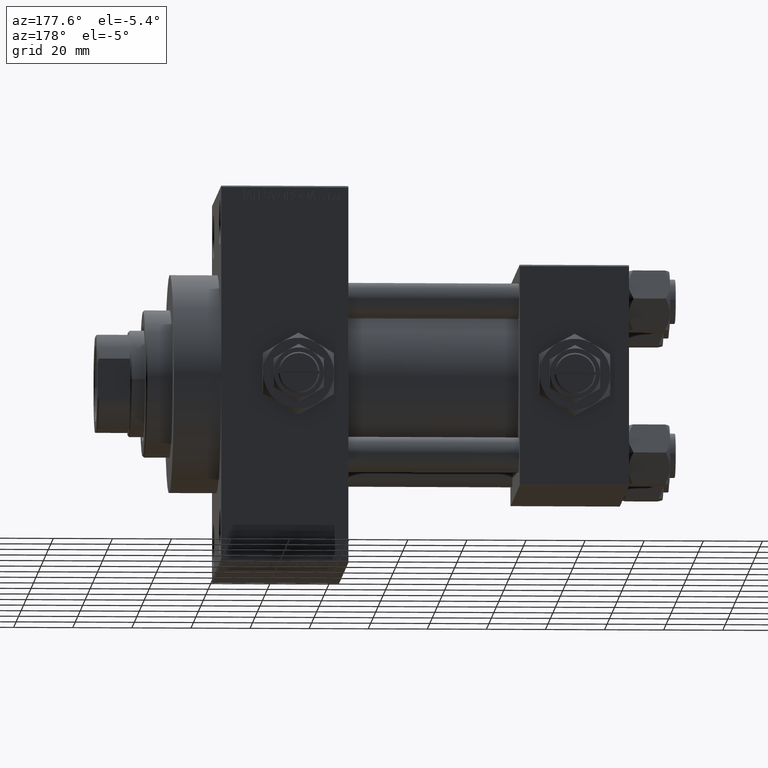
[diagram: clean part render]
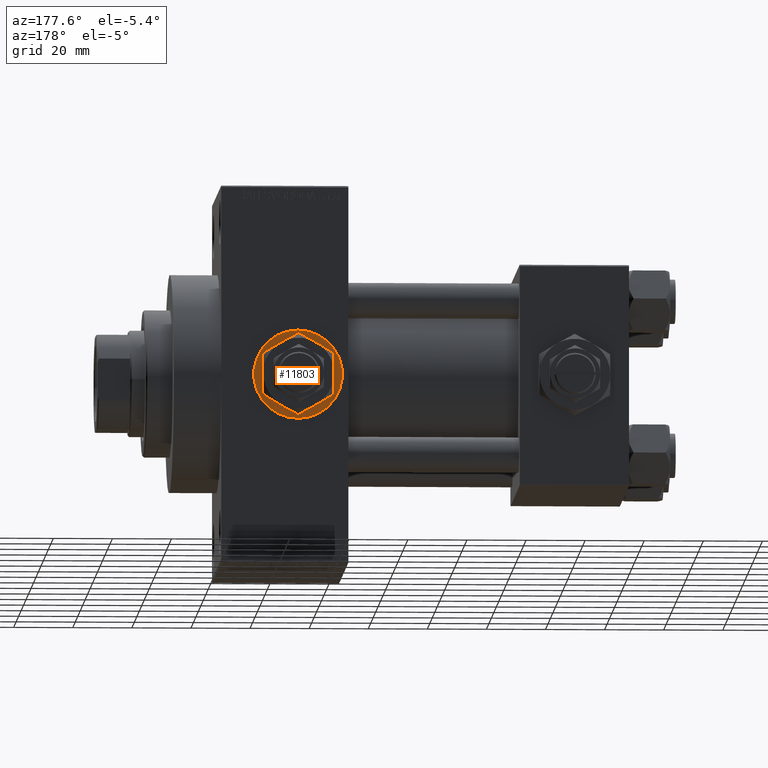
[diagram: same view with one face highlighted and labeled with its STEP entity id]
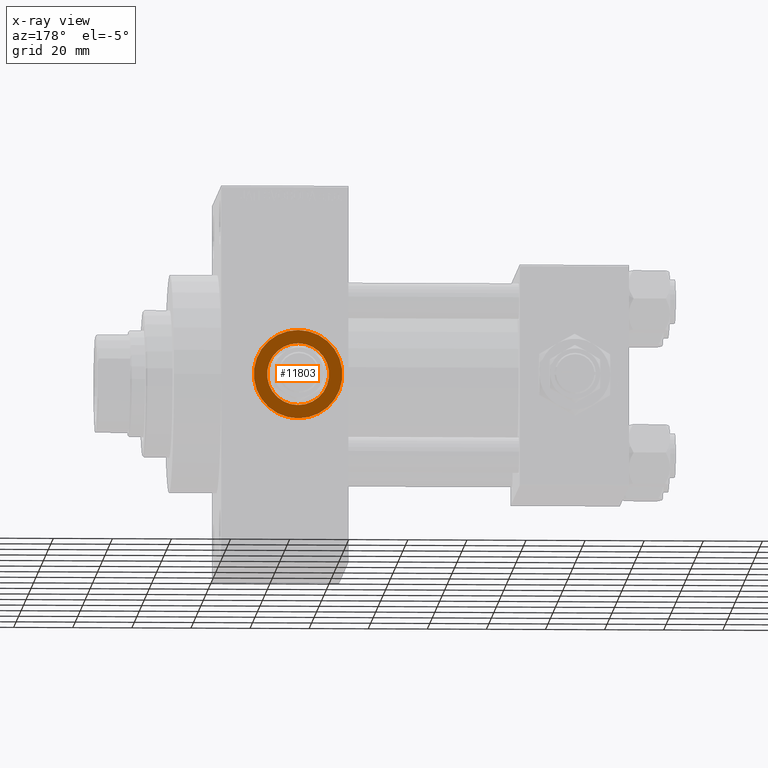
[diagram: x-ray of the same camera — body ghosted, the highlighted face saturated]
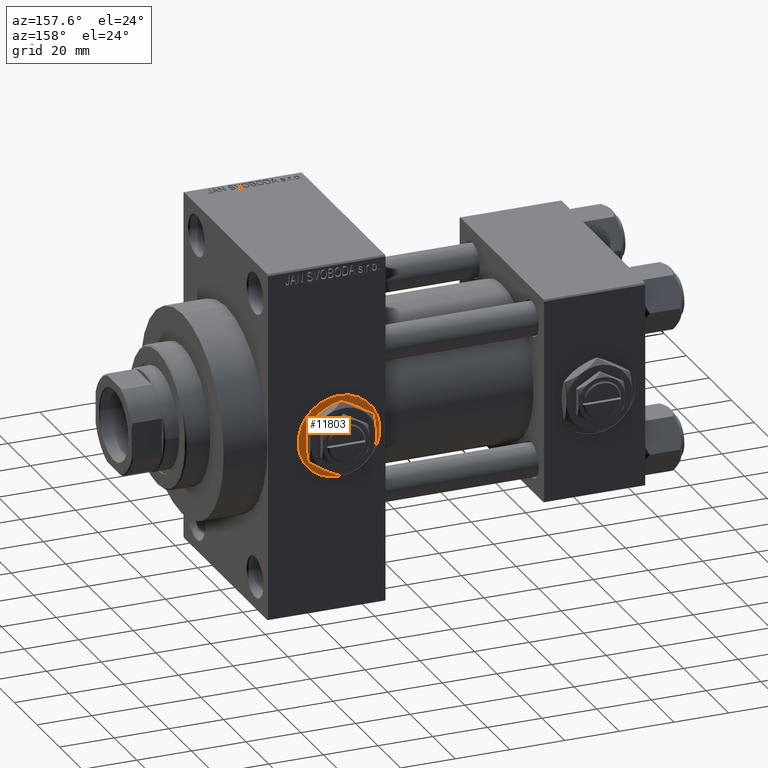
[diagram: same view with one face highlighted and labeled with its STEP entity id]
A machine part, auxiliary view. The second image highlights one B-rep face of the part: STEP entity #11803.
The next image is the same camera in x-ray: the body ghosted, the highlighted face saturated — about 0% of this face is hidden behind the body in this view.
A second angle (auxiliary view) of the same face is appended — the face is thin or edge-on in the first view.
In plain terms, the highlighted planar face has unit normal (0, 1, 0).
Its self-contained STEP definition (entity closure, byte-faithful):
#3241 = DIRECTION ( 'NONE',  ( 0.000000000000000000, 1.000000000000000000, 0.000000000000000000 ) ) ;
#4077 = ORIENTED_EDGE ( 'NONE', *, *, #46195, .F. ) ;
#4567 = CARTESIAN_POINT ( 'NONE',  ( 112.0000000000000000, 37.29999999999999716, -2.032879073410320814E-15 ) ) ;
#5619 = CIRCLE ( 'NONE', #24747, 10.48000000000000043 ) ;
#5658 = FACE_BOUND ( 'NONE', #12929, .T. ) ;
#5989 = VERTEX_POINT ( 'NONE', #38853 ) ;
#10160 = VERTEX_POINT ( 'NONE', #47848 ) ;
#11092 = ORIENTED_EDGE ( 'NONE', *, *, #36602, .F. ) ;
#11803 = ADVANCED_FACE ( 'NONE', ( #5658, #31117 ), #16144, .T. ) ;
#12628 = DIRECTION ( 'NONE',  ( 0.000000000000000000, 1.000000000000000000, 0.000000000000000000 ) ) ;
#12929 = EDGE_LOOP ( 'NONE', ( #4077, #11092 ) ) ;
#16028 = EDGE_CURVE ( 'NONE', #35830, #31231, #48926, .T. ) ;
#16065 = CIRCLE ( 'NONE', #28801, 15.00000000000001243 ) ;
#16144 = PLANE ( 'NONE',  #32035 ) ;
#16162 = CARTESIAN_POINT ( 'NONE',  ( 112.0000000000000000, 37.30000000000000426, -2.032879073410320814E-15 ) ) ;
#20268 = DIRECTION ( 'NONE',  ( 0.000000000000000000, 1.000000000000000000, 0.000000000000000000 ) ) ;
#20384 = CARTESIAN_POINT ( 'NONE',  ( 112.0000000000000000, 37.29999999999999716, -2.032879073410320814E-15 ) ) ;
#22349 = CARTESIAN_POINT ( 'NONE',  ( 112.0000000000000000, 37.29999999999999716, 15.00000000000001066 ) ) ;
#22884 = CARTESIAN_POINT ( 'NONE',  ( 112.0000000000000000, 37.29999999999999716, -15.00000000000001421 ) ) ;
#23273 = DIRECTION ( 'NONE',  ( 0.000000000000000000, 1.000000000000000000, 0.000000000000000000 ) ) ;
#24747 = AXIS2_PLACEMENT_3D ( 'NONE', #16162, #34141, #30654 ) ;
#27644 = EDGE_LOOP ( 'NONE', ( #47191, #43683 ) ) ;
#28801 = AXIS2_PLACEMENT_3D ( 'NONE', #4567, #20268, #42222 ) ;
#29551 = AXIS2_PLACEMENT_3D ( 'NONE', #38141, #3241, #33921 ) ;
#30497 = DIRECTION ( 'NONE',  ( 0.000000000000000000, 0.000000000000000000, 1.000000000000000000 ) ) ;
#30654 = DIRECTION ( 'NONE',  ( 0.000000000000000000, 0.000000000000000000, 1.000000000000000000 ) ) ;
#31117 = FACE_OUTER_BOUND ( 'NONE', #27644, .T. ) ;
#31231 = VERTEX_POINT ( 'NONE', #22349 ) ;
#32035 = AXIS2_PLACEMENT_3D ( 'NONE', #20384, #12628, #36071 ) ;
#33921 = DIRECTION ( 'NONE',  ( 0.000000000000000000, 0.000000000000000000, 1.000000000000000000 ) ) ;
#34141 = DIRECTION ( 'NONE',  ( 0.000000000000000000, 1.000000000000000000, 0.000000000000000000 ) ) ;
#34964 = CARTESIAN_POINT ( 'NONE',  ( 112.0000000000000000, 37.29999999999999716, -2.032879073410320814E-15 ) ) ;
#35830 = VERTEX_POINT ( 'NONE', #22884 ) ;
#36071 = DIRECTION ( 'NONE',  ( 0.000000000000000000, -0.000000000000000000, 1.000000000000000000 ) ) ;
#36602 = EDGE_CURVE ( 'NONE', #10160, #5989, #5619, .T. ) ;
#38141 = CARTESIAN_POINT ( 'NONE',  ( 112.0000000000000000, 37.30000000000000426, -2.032879073410320814E-15 ) ) ;
#38853 = CARTESIAN_POINT ( 'NONE',  ( 112.0000000000000000, 37.30000000000000426, 10.47999999999999865 ) ) ;
#39909 = CIRCLE ( 'NONE', #29551, 10.48000000000000043 ) ;
#42222 = DIRECTION ( 'NONE',  ( 0.000000000000000000, 0.000000000000000000, 1.000000000000000000 ) ) ;
#42578 = AXIS2_PLACEMENT_3D ( 'NONE', #34964, #23273, #30497 ) ;
#43683 = ORIENTED_EDGE ( 'NONE', *, *, #16028, .T. ) ;
#46195 = EDGE_CURVE ( 'NONE', #5989, #10160, #39909, .T. ) ;
#47191 = ORIENTED_EDGE ( 'NONE', *, *, #47764, .T. ) ;
#47764 = EDGE_CURVE ( 'NONE', #31231, #35830, #16065, .T. ) ;
#47848 = CARTESIAN_POINT ( 'NONE',  ( 112.0000000000000000, 37.30000000000000426, -10.48000000000000220 ) ) ;
#48926 = CIRCLE ( 'NONE', #42578, 15.00000000000001243 ) ;